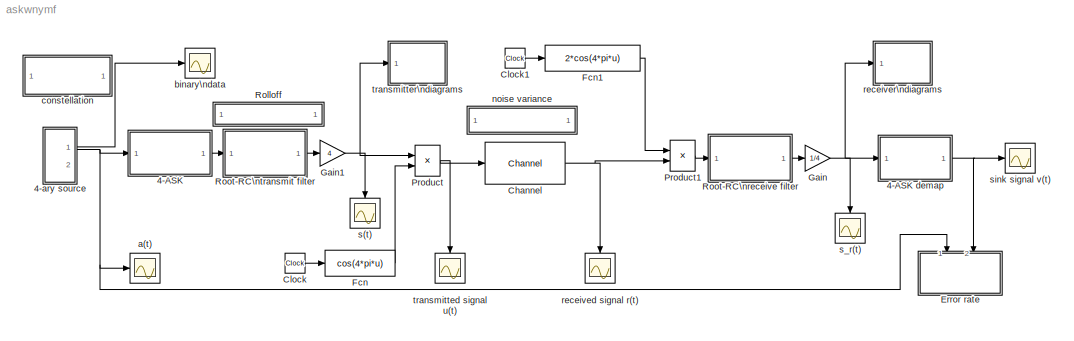
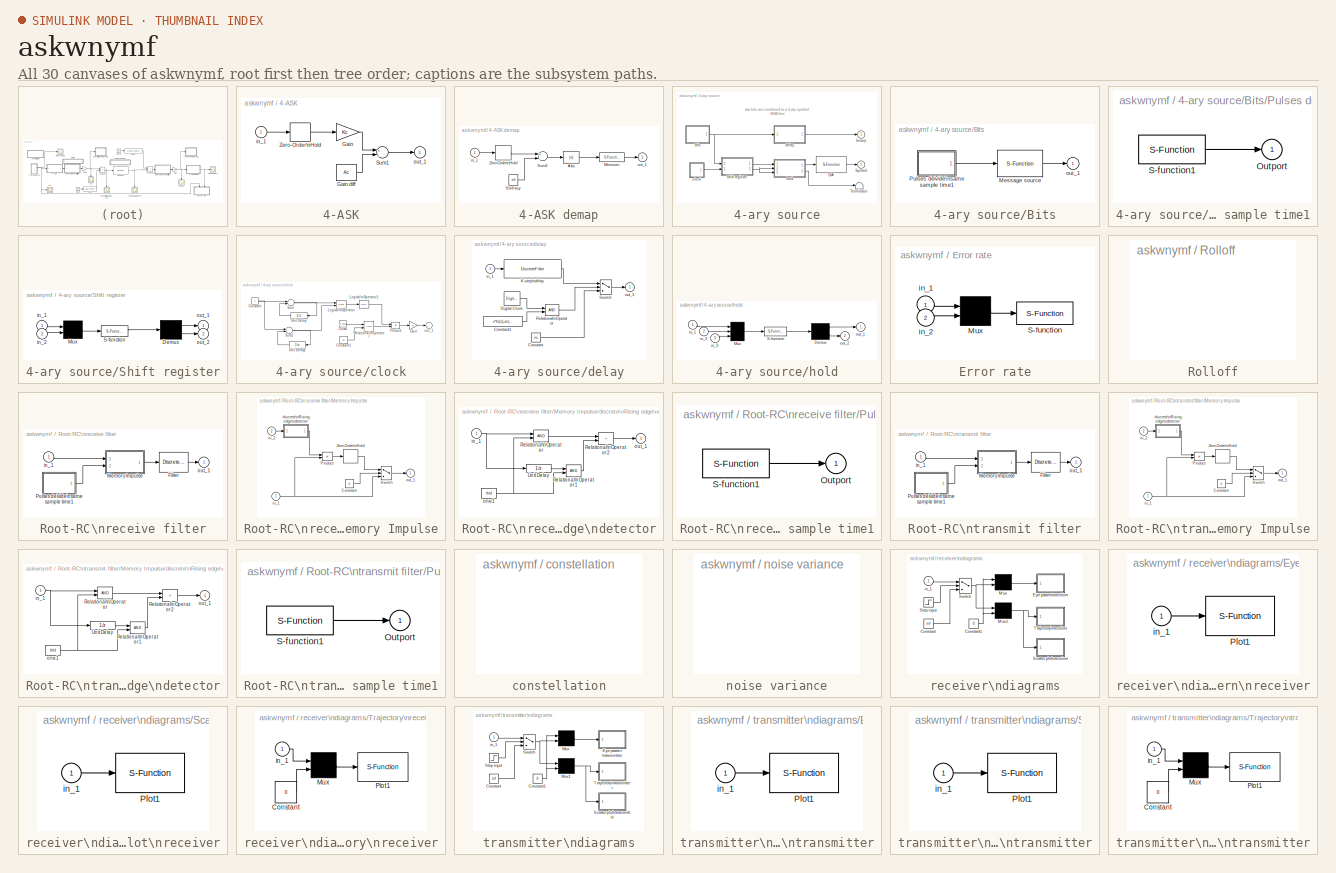
[diagram: thumbnail index - all 30 canvases of the model, root first then tree order]
MODEL askwnymf
KIND model
CONFIG AbsTol = 1e-6
CONFIG FixedStep = auto
CONFIG MaxStep = 0.05
CONFIG MinStep = .00001
CONFIG RelTol = 1e-6
CONFIG Solver = ode45
CONFIG SolverMode = Auto
CONFIG StartTime = 0.0
CONFIG StopTime = 999999
BLOCK [SubSystem] 4-ASK
  MaskCallbackString = |
  MaskDescription = Map a digital symbol onto an analog\nsignal in the range [-1, 1] using M-ary\namplitude shift keying modulation mapping.
  MaskDisplay = disp('MASK\\nmapping')
  MaskEnableString = on,on
  MaskHelp = This block maps an input digit signal onto a signal in the range [-1, 1]. The coded signal can be modulated using analog\\nmodulation blocks. Input digits are in the range [0, M-1], where M is the M-ary number. The input symbol interval can be a two-element vector with the second element being offset. The default value offset is 0. Use the MODMAP function to see the constellation.
  MaskIconFrame = on
  MaskIconOpaque = on
  MaskIconRotate = none
  MaskIconUnits = autoscale
  MaskInitialization = Ac=1;Kc=Ac*2/(N-1);
  MaskPromptString = M-ary number (input integers in range [0, M-1]):|Input symbol interval and offset (sec):
  MaskStyleString = edit,edit
  MaskToolTipString = on,on
  MaskTunableValueString = on,on
  MaskType = M-ASK mapping
  MaskValueString = 4|1
  MaskVarAliasString = ,
  MaskVariables = N=@1;td=@2;
  MaskVisibilityString = on,on
  Ports = [1, 1]
  TreatAsAtomicUnit = off
BLOCK [SubSystem] 4-ASK demap
  MaskCallbackString = |
  MaskDescription = Reverse the MASK mapping process\nConvert [-1 1] analog signal to [0, M-1] symbols.
  MaskDisplay = disp('MASK\\ndemapping')
  MaskEnableString = on,on
  MaskHelp = This block demaps a MASK mapped signal back to digit symbols. You can place this block after a amplitude demodulation block. The input of this block is an analog signal in the range [-1, 1]. The demodulation decides the closest integer fitting in [0,M-1] range. When the input symbol interval is a two-elements vector, the second element is offset. The default offset value is 0.
  MaskIconFrame = on
  MaskIconOpaque = on
  MaskIconRotate = none
  MaskIconUnits = autoscale
  MaskInitialization = Ac=1;sft=[0:N-1]*Ac*2/(N-1)-Ac;
  MaskPromptString = M-ary number (digit integers in ranger [0, M-1]):|Output symbol interval and offset (sec):
  MaskStyleString = edit,edit
  MaskToolTipString = on,on
  MaskTunableValueString = on,on
  MaskType = MASK demapping
  MaskValueString = 4|[1, .9]
  MaskVarAliasString = ,
  MaskVariables = N=@1;td=@2;
  MaskVisibilityString = on,on
  Ports = [1, 1]
  TreatAsAtomicUnit = off
BLOCK [Abs] 4-ASK demap/Abs
BLOCK [S-Function] 4-ASK demap/Minimum
  FunctionName = arymimai
  Parameters = 'min'
  Ports = [1, 1]
BLOCK [Constant] 4-ASK demap/Shift key
  Value = sft
BLOCK [Sum] 4-ASK demap/Sum2
  Inputs = +-
  Ports = [2, 1]
BLOCK [ZeroOrderHold] 4-ASK demap/Zero-Order\nHold
  SampleTime = td
BLOCK [Inport] 4-ASK demap/in_1
BLOCK [Outport] 4-ASK demap/out_1
BLOCK [Gain] 4-ASK/Gain
  Gain = Kc
BLOCK [Constant] 4-ASK/Gain diff
  Value = Ac
BLOCK [Sum] 4-ASK/Sum1
  Inputs = +-
  Ports = [2, 1]
BLOCK [ZeroOrderHold] 4-ASK/Zero-Order\nHold
  SampleTime = td
BLOCK [Inport] 4-ASK/in_1
BLOCK [Outport] 4-ASK/out_1
BLOCK [SubSystem] 4-ary source
  Ports = [0, 2]
  ShowPortLabels = off
  TreatAsAtomicUnit = off
BLOCK [SubSystem] 4-ary source/Bits
  MaskCallbackString = |||
  MaskDescription = Read from a workspace variable at\nsampling time point.
  MaskDisplay = plot(0,0,100,100,x,y);disp('Rd wksp')
  MaskEnableString = on,on,on,on
  MaskHelp = This block reads from a workspace variable at a given sample time. The column number is the block output vector length. When the simulation reaches the end of the variable (eof), the block will cyclically output from the first row of the variable or output zeros based on the repeat flag entree.
  MaskIconFrame = on
  MaskIconOpaque = on
  MaskIconRotate = none
  MaskIconUnits = autoscale
  MaskInitialization = var=@1;td=@2;ts=td(1);if (length(td)>=2),off=td(2);else off=0;end;cyc=@3;ini=@4;[x,y]=srcsicon(7);
  MaskPromptString = Variable (column_number=block_output_length):|Data output sample time (sec):|Repeat flag (1: repeat read, 0: output zeros after eof).|Initial output:
  MaskStyleString = edit,edit,edit,edit
  MaskToolTipString = on,on,on,on
  MaskTunableValueString = on,on,on,on
  MaskType = Read from workspace
  MaskValueString = randint(2000,1,2)|.5|1|1
  MaskVarAliasString = ,,,
  MaskVisibilityString = on,on,on,on
  Ports = [0, 1]
  ShowPortLabels = off
  TreatAsAtomicUnit = off
BLOCK [S-Function] 4-ary source/Bits/Message source
  FunctionName = trigwksp
  MaskCallbackString = |||
  MaskDescription = The raising edge of input pulse trigger the block output the next row from the workspace variable.
  MaskDisplay = disp('Triggered\\nread')
  MaskEnableString = on,on,on,on
  MaskHelp = This block reads the data from a workspace variable. The output is refreshed at the raising edge of the input pulse.
  MaskIconFrame = on
  MaskIconOpaque = on
  MaskIconRotate = none
  MaskIconUnits = autoscale
  MaskInitialization = var=@1;thd=@2;cyclFlag=@3;ini=@4;
  MaskPromptString = Read the variable:|Threshold for the input pulse:|Cyclic read variable (1) or amend zeros (0).|Output before first trigger:
  MaskStyleString = edit,edit,edit,edit
  MaskToolTipString = on,on,on,on
  MaskTunableValueString = on,on,on,on
  MaskType = Read from workspace
  MaskValueString = var|.1|cyc|ini
  MaskVarAliasString = ,,,
  MaskVisibilityString = on,on,on,on
  Parameters = var,thd,cyclFlag,ini
  Ports = [1, 1]
BLOCK [SubSystem] 4-ary source/Bits/Pulses deivide\nsame sample time1
  MaskCallbackString = ||
  MaskDescription = Vector pulses with sample rate of each pulse as Sample_time ./Divider.
  MaskDisplay = disp('Vector\\nPulse')
  MaskEnableString = on,on,on
  MaskHelp = This block generator a vector pulses. The output length is the same as the vector defined in \"Divider\". The ith element of the output has the sample time Sample_time/Divider(i). All elements in \"Divider\" must be integers.  <repeated x3 — deduplicated; at blocks: Pulses deivide\nsame sample time1>
  MaskIconFrame = on
  MaskIconOpaque = on
  MaskIconRotate = none
  MaskIconUnits = autoscale
  MaskInitialization = samp_time=@1;out_divid=@2;offset=@3;
  MaskPromptString = Sample time (scalar, sec):|Divider (integer vector):|Offset (have same dimension as Divider:
  MaskStyleString = edit,edit,edit
  MaskToolTipString = on,on,on
  MaskTunableValueString = on,on,on
  MaskType = Pulse generator
  MaskValueString = ts|1|off
  MaskVarAliasString = ,,
  MaskVisibilityString = on,on,on
  Ports = [0, 1]
  ShowPortLabels = off
  TreatAsAtomicUnit = off
BLOCK [Outport] 4-ary source/Bits/Pulses deivide\nsame sample time1/Outport
BLOCK [S-Function] 4-ary source/Bits/Pulses deivide\nsame sample time1/S-function1
  FunctionName = homopuls
  Parameters = samp_time, out_divid, offset
  Ports = [0, 1]
BLOCK [Outport] 4-ary source/Bits/out_1
BLOCK [S-Function] 4-ary source/D//A 
  FunctionName = simbi2de
  MaskDescription = Convert base M integer with each\nposition in the input vector into scalar decimal output.
  MaskDisplay = disp('Vec to sca\\nconverter')
  MaskEnableString = on
  MaskHelp = This block convert the base M vector into scalar decimal integer output. Each element of the input vector is one position of the digit of the base M integer. The 1st element in the input vector contains the 1's position. The 2nd element in the input vector contains the M's position.
  MaskIconFrame = on
  MaskIconOpaque = on
  MaskIconRotate = none
  MaskIconUnits = autoscale
  MaskInitialization = p=@1;
  MaskPromptString = Input integer base M:
  MaskStyleString = edit
  MaskToolTipString = on
  MaskTunableValueString = on
  MaskType = Base M vector to decimal integer
  MaskValueString = 2
  MaskVisibilityString = on
  Parameters = p
  Ports = [1, 1]
BLOCK [SubSystem] 4-ary source/Shift register
  MaskCallbackString = |
  MaskDescription = The rising edge of the 2nd port pulse\ntriggers the block to input the 1st port data and to shift the register.
  MaskDisplay = plot(0,0,100,100,x,y,v,w);disp('Reg. shift')
  MaskEnableString = on,on
  MaskHelp = This block stores the scalar input signal from the 1st input port at the rising edge of the pulse from the 2nd port. The 1st outport outputs a vector with its size the same as the \"Delay steps\" entree of this block. The maximum delay is the register size of this block. The second outport outputs a positive pulse when the register is\\nrefreshed.
  MaskIconFrame = on
  MaskIconOpaque = on
  MaskIconRotate = none
  MaskIconUnits = autoscale
  MaskInitialization = shft_out=@1;thrhld=@2;len_rg=length(@1);[v,w]=trigicon(0,25,get_param(gcb,'orientation'),2);[x,y]=trigicon(1,75,get_param(gcb,'orientation'),2);
  MaskPromptString = Delay steps (output length is same as this vector size):|Threshold in detecting the rising edge of the pulse:
  MaskStyleString = edit,edit
  MaskToolTipString = on,on
  MaskTunableValueString = on,on
  MaskType = Register-shift
  MaskValueString = [2 1]|1
  MaskVarAliasString = ,
  MaskVisibilityString = on,on
  Ports = [2, 2]
  ShowPortLabels = off
  TreatAsAtomicUnit = off
BLOCK [Demux] 4-ary source/Shift register/Demux
  Outputs = [len_rg, 1]
  Ports = [1, 2]
BLOCK [Mux] 4-ary source/Shift register/Mux
  Inputs = 2
  Ports = [2, 1]
BLOCK [S-Function] 4-ary source/Shift register/S-function
  FunctionName = regshift
  Parameters = shft_out, thrhld
  Ports = [1, 1]
BLOCK [Inport] 4-ary source/Shift register/in_1
BLOCK [Inport] 4-ary source/Shift register/in_2
  Port = 2
BLOCK [Outport] 4-ary source/Shift register/out_1
BLOCK [Outport] 4-ary source/Shift register/out_2
  Port = 2
BLOCK [Outport] 4-ary source/Symbol
  Port = 2
BLOCK [Terminator] 4-ary source/Terminator
BLOCK [Outport] 4-ary source/binary
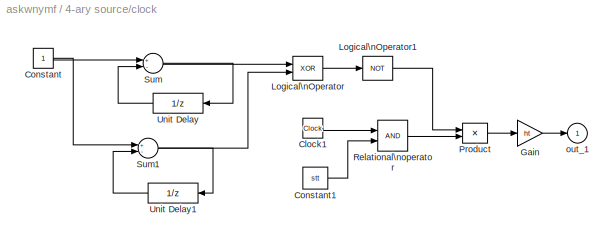
BLOCK [SubSystem] 4-ary source/clock
  MaskCallbackString = |||
  MaskDescription = Pulse Generator.
  MaskDisplay = plot(0,0,100,100,[90,75,75,60,60,35,35,20,20,10],[20,20,80,80,20,20,80,80,20,20])
  MaskEnableString = on,on,on,on
  MaskHelp = Pulse generator which ensures pulse\\ntransitions are hit. Provides a vector of pulses when the height is entered as a vector.\\nUnmask to see how it works.
  MaskIconFrame = on
  MaskIconOpaque = on
  MaskIconRotate = none
  MaskIconUnits = autoscale
  MaskInitialization = Ts=@1; du=@2; ht=@3; stt=@4; ini=ones(length(ht),1); st1=rem(stt,Ts); st2=rem(stt+du,Ts);if(Ts<=1.2*du),ini=zeros(length(ht),1);end;
  MaskPromptString = Pulse period (secs):|Pulse width:|Pulse height:|Pulse start time:
  MaskStyleString = edit,edit,edit,edit
  MaskToolTipString = on,on,on,on
  MaskTunableValueString = on,on,on,on
  MaskType = Pulse Generator
  MaskValueString = .5|.25|1|0
  MaskVarAliasString = ,,,
  MaskVisibilityString = on,on,on,on
  Ports = [0, 1]
  ShowPortLabels = off
  TreatAsAtomicUnit = off
BLOCK [Clock] 4-ary source/clock/Clock1
  Decimation = 10
BLOCK [Constant] 4-ary source/clock/Constant
BLOCK [Constant] 4-ary source/clock/Constant1
  Value = stt
BLOCK [Gain] 4-ary source/clock/Gain
  Gain = ht
BLOCK [Logic] 4-ary source/clock/Logical\nOperator
  Operator = XOR
  Ports = [2, 1]
BLOCK [Logic] 4-ary source/clock/Logical\nOperator1
  Inputs = 1
  Operator = NOT
  Ports = [1, 1]
BLOCK [Product] 4-ary source/clock/Product
  Ports = [2, 1]
BLOCK [RelationalOperator] 4-ary source/clock/Relational\noperator
BLOCK [Sum] 4-ary source/clock/Sum
  Inputs = +-
  Ports = [2, 1]
BLOCK [Sum] 4-ary source/clock/Sum1
  Inputs = +-
  Ports = [2, 1]
BLOCK [UnitDelay] 4-ary source/clock/Unit Delay
  SampleTime = [Ts,st1]
BLOCK [UnitDelay] 4-ary source/clock/Unit Delay1
  SampleTime = [Ts,st2]
  X0 = ini
BLOCK [Outport] 4-ary source/clock/out_1
BLOCK [SubSystem] 4-ary source/delay
  MaskCallbackString = ||
  MaskDescription = Output is K-step delay of the input signal.
  MaskDisplay = disp('-k\\nz   ')
  MaskEnableString = on,on,on
  MaskHelp = This block holds the input signal for K steps and then outputs the signal. The delay step cannot be changed during the simulation.
  MaskIconFrame = on
  MaskIconOpaque = on
  MaskIconRotate = none
  MaskIconUnits = autoscale
  MaskInitialization = n=@1;ts=@2;if length(ts)<2, ts=[ts 0];end;ini=@3;
  MaskPromptString = Delay steps (integer):|Sample time (sec):|Initial output:
  MaskStyleString = edit,edit,edit
  MaskToolTipString = on,on,on
  MaskTunableValueString = on,on,on
  MaskType = Multi-step delay
  MaskValueString = 2|.5|0
  MaskVarAliasString = ,,
  MaskVisibilityString = on,on,on
  Ports = [1, 1]
  ShowPortLabels = off
  TreatAsAtomicUnit = off
BLOCK [Constant] 4-ary source/delay/Constant
  Value = ini
BLOCK [Constant] 4-ary source/delay/Constant1
  Value = n*ts(1)+ts(2)
BLOCK [DigitalClock] 4-ary source/delay/Digital Clock
  SampleTime = ts
BLOCK [DiscreteFilter] 4-ary source/delay/K-step\ndelay
  Denominator = 1
  Numerator = [zeros(1,n), 1]
  SampleTime = ts
BLOCK [RelationalOperator] 4-ary source/delay/Relational\nOperator
BLOCK [Switch] 4-ary source/delay/Switch
  Threshold = .1
BLOCK [Inport] 4-ary source/delay/in_1
BLOCK [Outport] 4-ary source/delay/out_1
BLOCK [SubSystem] 4-ary source/hold
  MaskCallbackString = ||||
  MaskDescription = Rising edge of the 2nd port triggers 1st port vector signal in. Rising edge of the 3rd port triggers 1st outport signal out.
  MaskDisplay = plot(0,0,100,100,x,y,v,w,u,z);disp('Buffer dwn')
  MaskEnableString = on,on,on,on,on
  MaskHelp = The block refreshes its registers with the vector input from the 1st inport at the rising edge of the 2nd inport pulse. The 1st outport outputs the elements of the registers starting with the given initial index. The rising edge of the 3rd inport pulse triggers the 1st output to output the register value with the index increasing the increment value. The second outport outputs a spike pulse when t...<+34ch>
  MaskIconFrame = on
  MaskIconOpaque = on
  MaskIconRotate = none
  MaskIconUnits = autoscale
  MaskInitialization = in_size=@1;ini_idx=@2;idx_inc=@3;thrshld=@4;cycl_flag=@5;out_size=length(ini_idx);[v,w]=trigicon(0,25,get_param(gcb,'orientation'),2);[x,y]=trigicon(1,75,get_param(gcb,'orientation'),2);[u,z]=trigicon(0,50,get_param(gcb,'orientation'),2);
  MaskPromptString = Input signal vector size:|Initial index (integer vector):|Increment for each index (integer vector):|Trigger threshold:|When index exceed register size, 1: cyclic out, 0: zero out:
  MaskStyleString = edit,edit,edit,edit,edit
  MaskToolTipString = on,on,on,on,on
  MaskTunableValueString = on,on,on,on,on
  MaskType = Triggered buffer down
  MaskValueString = 2|[1 0]|[0 0]|1|0
  MaskVarAliasString = ,,,,
  MaskVisibilityString = on,on,on,on,on
  Ports = [3, 2]
  ShowPortLabels = off
  TreatAsAtomicUnit = off
BLOCK [Demux] 4-ary source/hold/Demux
  Outputs = [out_size 1]
  Ports = [1, 2]
BLOCK [Mux] 4-ary source/hold/Mux
  Inputs = [in_size 1 1]
  Ports = [3, 1]
BLOCK [S-Function] 4-ary source/hold/S-function
  FunctionName = regdown
  Parameters = ini_idx, idx_inc, thrshld, cycl_flag
  Ports = [1, 1]
BLOCK [Inport] 4-ary source/hold/in_1
BLOCK [Inport] 4-ary source/hold/in_2
  Port = 2
BLOCK [Inport] 4-ary source/hold/in_3
  Port = 3
BLOCK [Outport] 4-ary source/hold/out_1
BLOCK [Outport] 4-ary source/hold/out_2
  Port = 2
BLOCK [Reference] Channel  REF=librnew/Channel  (lib defined in mdl_aba7bc8d2a37)
  Ports = [1, 1]
  SourceBlock = librnew/Channel
  SourceType = AWGN channel, fixed parameter
  m = 0
  s = 12345
  variance = 0.001
BLOCK [Clock] Clock
  Decimation = 10
BLOCK [Clock] Clock1
  Decimation = 10
BLOCK [SubSystem] Error rate
  CopyFcn = sbiterr([],[],[],'CopyBlock')
  DeleteFcn = sbiterr([],[],[],'DeleteBlock')
  LoadFcn = sbiterr([],[],[],'LoadBlock')
  MaskCallbackString = |||
  MaskDescription = Use the input data from the 1st port as the reference signal to detect the number of errors and error rate of the 2nd signal.
  MaskDisplay = disp('Error\\nmeter')
  MaskEnableString = on,on,on,on
  MaskHelp = The signal from the first port must be a scalar. The second input port can be a vector with a delay to the first port signal. The comparison happens only at the sampling point.
  MaskIconFrame = on
  MaskIconOpaque = on
  MaskIconRotate = none
  MaskIconUnits = autoscale
  MaskInitialization = K=@1;num_lin=@2;TDelay=@3;Sample=@4;
  MaskPromptString = Bit per symbol:|Number of digits on display:|Delay between 1st port and 2nd port:|Sample time (sec):
  MaskStyleString = edit,edit,edit,edit
  MaskToolTipString = on,on,on,on
  MaskTunableValueString = on,on,on,on
  MaskType = Symbol/bit error counter
  MaskValueString = 2|10|12|1
  MaskVarAliasString = ,,,
  MaskVisibilityString = on,on,on,on
  NameChangeFcn = sbiterr([],[],[],'NameChange')
  Ports = [2]
  ShowPortLabels = off
  StartFcn = sbiterr([],[],[],'Start')
  StopFcn = sbiterr([],[],[],'Stop')
  TreatAsAtomicUnit = off
BLOCK [Mux] Error rate/Mux
  Inputs = 2
  Ports = [2, 1]
BLOCK [S-Function] Error rate/S-function
  FunctionName = sbiterr
  Parameters = num_lin, K, TDelay, Sample
  Ports = [1]
BLOCK [Inport] Error rate/in_1
BLOCK [Inport] Error rate/in_2
  Port = 2
BLOCK [Fcn] Fcn
  Expr = cos(4*pi*u)
BLOCK [Fcn] Fcn1
  Expr = 2*cos(4*pi*u)
BLOCK [Gain] Gain
  Gain = 1/4
BLOCK [Gain] Gain1
  Gain = 4
BLOCK [Product] Product
  Ports = [2, 1]
BLOCK [Product] Product1
  Ports = [2, 1]
BLOCK [SubSystem] Rolloff
  MaskDisplay = disp('Rolloff-Factor')
  MaskIconFrame = on
  MaskIconOpaque = on
  MaskIconRotate = none
  MaskIconUnits = autoscale
  MaskType = rolloff
  OpenFcn = setrobin
  Ports = []
  ShowPortLabels = off
  TreatAsAtomicUnit = off
BLOCK [SubSystem] Root-RC\nreceive filter
  MaskCallbackString = |||||
  MaskDescription = Design a raised cosine filter and use it to filter the input signal.
  MaskDisplay = disp('R-C\\nfilter')
  MaskEnableString = on,on,on,on,on,on
  MaskHelp = This block designs a raised cosine filter using the specified parameter. The filter is used to filter the input signal. You can optionally use the sinc filter in the filtering computation.
  MaskIconFrame = on
  MaskIconOpaque = on
  MaskIconRotate = none
  MaskIconUnits = autoscale
  MaskInitialization = td=@1;if length(td)>1,off=td(2);td=td(1);else,off=0;end;ts=@2;R=@3;delay=@4;fil=@5;[num,den]=rcosine(1/td(1),1/ts(1),fil,R,delay);x=@6/2;
  MaskPromptString = Symbol interval (sec):|Computation sampling time (sec):|Filter rolloff factor:|Delay step (integer to multiply symbol interval):|Filter type (FIR or IIR) / (Normal or Sqrt):|With or without sinc filter (1 or 0, suggest 1):
  MaskStyleString = edit,edit,edit,edit,edit,edit
  MaskToolTipString = on,on,on,on,on,on
  MaskTunableValueString = on,on,on,on,on,on
  MaskType = R-C filter
  MaskValueString = 1|.05|.5|6|'FIR/Sqrt'|0
  MaskVarAliasString = ,,,,,
  MaskVisibilityString = on,on,on,on,on,on
  Ports = [1, 1]
  ShowPortLabels = off
  TreatAsAtomicUnit = off
BLOCK [DiscreteFilter] Root-RC\nreceive filter/Filter
  Denominator = den
  Numerator = num
  SampleTime = ts
BLOCK [SubSystem] Root-RC\nreceive filter/Memory Impulse
  MaskCallbackString = |
  MaskDescription = 1/sinc filter:
  MaskDisplay = disp('1/sinc')
  MaskEnableString = on,on
  MaskHelp = When the threshold is greater than zero, this block outputs an impulse signal, which begins at the raising edge of the second input and lasts the holding time. The impulse holds a constant amplitude, which equals the amplitude of the first input at the begining of the impulse. A clock raising edge will trigger next impulse. When the threshold is less or equal to zero, this block faithfully outputs...<+17ch>
  MaskIconFrame = on
  MaskIconOpaque = on
  MaskIconRotate = none
  MaskIconUnits = autoscale
  MaskInitialization = ts=@1;thr=@2;x=thr>0;
  MaskPromptString = Holding time:|Threshold for clock pulse:
  MaskStyleString = edit,edit
  MaskToolTipString = on,on
  MaskTunableValueString = on,on
  MaskType = Impulse
  MaskValueString = ts|x
  MaskVarAliasString = ,
  MaskVisibilityString = on,on
  Ports = [2, 1]
  ShowPortLabels = off
  TreatAsAtomicUnit = off
BLOCK [Constant] Root-RC\nreceive filter/Memory Impulse/Constant
  Value = x
BLOCK [Product] Root-RC\nreceive filter/Memory Impulse/Product
  Ports = [2, 1]
BLOCK [Switch] Root-RC\nreceive filter/Memory Impulse/Switch
  Threshold = .5
BLOCK [ZeroOrderHold] Root-RC\nreceive filter/Memory Impulse/Zero-Order\nHold
  SampleTime = ts
BLOCK [SubSystem] Root-RC\nreceive filter/Memory Impulse/discrete\nRising edge\ndetector
  MaskCallbackString = |
  MaskDescription = Rising edge detection:
  MaskDisplay = disp('Edge\\nDetector')
  MaskEnableString = on,on
  MaskHelp = When the input signal rising edge passed the given shreshold, this block outputs one, otherwise outputs zero.
  MaskIconFrame = on
  MaskIconOpaque = on
  MaskIconRotate = none
  MaskIconUnits = autoscale
  MaskInitialization = thld=@1;ts=@2;
  MaskPromptString = Threshold:|Sampling time:
  MaskStyleString = edit,edit
  MaskToolTipString = on,on
  MaskTunableValueString = on,on
  MaskType = Edge Detection
  MaskValueString = thr|ts
  MaskVarAliasString = ,
  MaskVisibilityString = on,on
  Ports = [1, 1]
  ShowPortLabels = off
  TreatAsAtomicUnit = off
BLOCK [RelationalOperator] Root-RC\nreceive filter/Memory Impulse/discrete\nRising edge\ndetector/Relational\nOperator
BLOCK [RelationalOperator] Root-RC\nreceive filter/Memory Impulse/discrete\nRising edge\ndetector/Relational\nOperator1
BLOCK [RelationalOperator] Root-RC\nreceive filter/Memory Impulse/discrete\nRising edge\ndetector/Relational\nOperator2
  Operator = >
BLOCK [UnitDelay] Root-RC\nreceive filter/Memory Impulse/discrete\nRising edge\ndetector/Unit Delay
  SampleTime = ts
BLOCK [Inport] Root-RC\nreceive filter/Memory Impulse/discrete\nRising edge\ndetector/in_1
BLOCK [Constant] Root-RC\nreceive filter/Memory Impulse/discrete\nRising edge\ndetector/one1
  Value = thld
BLOCK [Outport] Root-RC\nreceive filter/Memory Impulse/discrete\nRising edge\ndetector/out_1
BLOCK [Inport] Root-RC\nreceive filter/Memory Impulse/in_1
BLOCK [Inport] Root-RC\nreceive filter/Memory Impulse/in_2
  Port = 2
BLOCK [Outport] Root-RC\nreceive filter/Memory Impulse/out_1
BLOCK [SubSystem] Root-RC\nreceive filter/Pulses deivide\nsame sample time1
  MaskCallbackString = ||
  MaskDescription = Vector pulses with sample rate of each pulse as Sample_time ./Divider.
  MaskDisplay = disp('Vector\\nPulse')
  MaskEnableString = on,on,on
  MaskIconFrame = on
  MaskIconOpaque = on
  MaskIconRotate = none
  MaskIconUnits = autoscale
  MaskInitialization = samp_time=@1;out_divid=@2;offset=@3;
  MaskPromptString = Sample time (scalar, sec):|Divider (integer vector):|Offset (have same dimension as Divider:
  MaskStyleString = edit,edit,edit
  MaskToolTipString = on,on,on
  MaskTunableValueString = on,on,on
  MaskType = Pulse generator
  MaskValueString = td|1|off
  MaskVarAliasString = ,,
  MaskVisibilityString = on,on,on
  Ports = [0, 1]
  ShowPortLabels = off
  TreatAsAtomicUnit = off
BLOCK [Outport] Root-RC\nreceive filter/Pulses deivide\nsame sample time1/Outport
BLOCK [S-Function] Root-RC\nreceive filter/Pulses deivide\nsame sample time1/S-function1
  FunctionName = homopuls
  Parameters = samp_time, out_divid, offset
  Ports = [0, 1]
BLOCK [Inport] Root-RC\nreceive filter/in_1
BLOCK [Outport] Root-RC\nreceive filter/out_1
BLOCK [SubSystem] Root-RC\ntransmit filter
  MaskCallbackString = |||||
  MaskDescription = Design a raised cosine filter and use it to filter the input signal.
  MaskDisplay = disp('R-C\\nfilter')
  MaskEnableString = on,on,on,on,on,on
  MaskHelp = This block designs a raised cosine filter using the specified parameter. The filter is used to filter the input signal. You can optionally use the sinc filter in the filtering computation.
  MaskIconFrame = on
  MaskIconOpaque = on
  MaskIconRotate = none
  MaskIconUnits = autoscale
  MaskInitialization = td=@1;if length(td)>1,off=td(2);td=td(1);else,off=0;end;ts=@2;R=@3;delay=@4;fil=@5;[num,den]=rcosine(1/td(1),1/ts(1),fil,R,delay);x=@6/2;
  MaskPromptString = Symbol interval (sec):|Computation sampling time (sec):|Filter rolloff factor:|Delay step (integer to multiply symbol interval):|Filter type (FIR or IIR) / (Normal or Sqrt):|With or without sinc filter (1 or 0, suggest 1):
  MaskStyleString = edit,edit,edit,edit,edit,edit
  MaskToolTipString = on,on,on,on,on,on
  MaskTunableValueString = on,on,on,on,on,on
  MaskType = R-C filter
  MaskValueString = 1|.05|.5|6|'FIR/Sqrt'|1
  MaskVarAliasString = ,,,,,
  MaskVisibilityString = on,on,on,on,on,on
  Ports = [1, 1]
  ShowPortLabels = off
  TreatAsAtomicUnit = off
BLOCK [DiscreteFilter] Root-RC\ntransmit filter/Filter
  Denominator = den
  Numerator = num
  SampleTime = ts
BLOCK [SubSystem] Root-RC\ntransmit filter/Memory Impulse
  MaskCallbackString = |
  MaskDescription = 1/sinc filter:
  MaskDisplay = disp('1/sinc')
  MaskEnableString = on,on
  MaskHelp = When the threshold is greater than zero, this block outputs an impulse signal, which begins at the raising edge of the second input and lasts the holding time. The impulse holds a constant amplitude, which equals the amplitude of the first input at the begining of the impulse. A clock raising edge will trigger next impulse. When the threshold is less or equal to zero, this block faithfully outputs...<+17ch>
  MaskIconFrame = on
  MaskIconOpaque = on
  MaskIconRotate = none
  MaskIconUnits = autoscale
  MaskInitialization = ts=@1;thr=@2;x=thr>0;
  MaskPromptString = Holding time:|Threshold for clock pulse:
  MaskStyleString = edit,edit
  MaskToolTipString = on,on
  MaskTunableValueString = on,on
  MaskType = Impulse
  MaskValueString = ts|x
  MaskVarAliasString = ,
  MaskVisibilityString = on,on
  Ports = [2, 1]
  ShowPortLabels = off
  TreatAsAtomicUnit = off
BLOCK [Constant] Root-RC\ntransmit filter/Memory Impulse/Constant
  Value = x
BLOCK [Product] Root-RC\ntransmit filter/Memory Impulse/Product
  Ports = [2, 1]
BLOCK [Switch] Root-RC\ntransmit filter/Memory Impulse/Switch
  Threshold = .5
BLOCK [ZeroOrderHold] Root-RC\ntransmit filter/Memory Impulse/Zero-Order\nHold
  SampleTime = ts
BLOCK [SubSystem] Root-RC\ntransmit filter/Memory Impulse/discrete\nRising edge\ndetector
  MaskCallbackString = |
  MaskDescription = Rising edge detection:
  MaskDisplay = disp('Edge\\nDetector')
  MaskEnableString = on,on
  MaskHelp = When the input signal rising edge passed the given shreshold, this block outputs one, otherwise outputs zero.
  MaskIconFrame = on
  MaskIconOpaque = on
  MaskIconRotate = none
  MaskIconUnits = autoscale
  MaskInitialization = thld=@1;ts=@2;
  MaskPromptString = Threshold:|Sampling time:
  MaskStyleString = edit,edit
  MaskToolTipString = on,on
  MaskTunableValueString = on,on
  MaskType = Edge Detection
  MaskValueString = thr|ts
  MaskVarAliasString = ,
  MaskVisibilityString = on,on
  Ports = [1, 1]
  ShowPortLabels = off
  TreatAsAtomicUnit = off
BLOCK [RelationalOperator] Root-RC\ntransmit filter/Memory Impulse/discrete\nRising edge\ndetector/Relational\nOperator
BLOCK [RelationalOperator] Root-RC\ntransmit filter/Memory Impulse/discrete\nRising edge\ndetector/Relational\nOperator1
BLOCK [RelationalOperator] Root-RC\ntransmit filter/Memory Impulse/discrete\nRising edge\ndetector/Relational\nOperator2
  Operator = >
BLOCK [UnitDelay] Root-RC\ntransmit filter/Memory Impulse/discrete\nRising edge\ndetector/Unit Delay
  SampleTime = ts
BLOCK [Inport] Root-RC\ntransmit filter/Memory Impulse/discrete\nRising edge\ndetector/in_1
BLOCK [Constant] Root-RC\ntransmit filter/Memory Impulse/discrete\nRising edge\ndetector/one1
  Value = thld
BLOCK [Outport] Root-RC\ntransmit filter/Memory Impulse/discrete\nRising edge\ndetector/out_1
BLOCK [Inport] Root-RC\ntransmit filter/Memory Impulse/in_1
BLOCK [Inport] Root-RC\ntransmit filter/Memory Impulse/in_2
  Port = 2
BLOCK [Outport] Root-RC\ntransmit filter/Memory Impulse/out_1
BLOCK [SubSystem] Root-RC\ntransmit filter/Pulses deivide\nsame sample time1
  MaskCallbackString = ||
  MaskDescription = Vector pulses with sample rate of each pulse as Sample_time ./Divider.
  MaskDisplay = disp('Vector\\nPulse')
  MaskEnableString = on,on,on
  MaskIconFrame = on
  MaskIconOpaque = on
  MaskIconRotate = none
  MaskIconUnits = autoscale
  MaskInitialization = samp_time=@1;out_divid=@2;offset=@3;
  MaskPromptString = Sample time (scalar, sec):|Divider (integer vector):|Offset (have same dimension as Divider:
  MaskStyleString = edit,edit,edit
  MaskToolTipString = on,on,on
  MaskTunableValueString = on,on,on
  MaskType = Pulse generator
  MaskValueString = td|1|off
  MaskVarAliasString = ,,
  MaskVisibilityString = on,on,on
  Ports = [0, 1]
  ShowPortLabels = off
  TreatAsAtomicUnit = off
BLOCK [Outport] Root-RC\ntransmit filter/Pulses deivide\nsame sample time1/Outport
BLOCK [S-Function] Root-RC\ntransmit filter/Pulses deivide\nsame sample time1/S-function1
  FunctionName = homopuls
  Parameters = samp_time, out_divid, offset
  Ports = [0, 1]
BLOCK [Inport] Root-RC\ntransmit filter/in_1
BLOCK [Outport] Root-RC\ntransmit filter/out_1
BLOCK [Scope] a(t)
  DataFormat = Array
  NumInputPorts = 1
  Ports = [1]
  TimeRange = 25.000000
  YMax = 3
  YMin = -3
BLOCK [Scope] binary\ndata
  DataFormat = Array
  NumInputPorts = 1
  Ports = [1]
  TimeRange = 25.000000
  YMax = 3
  YMin = -3
BLOCK [SubSystem] constellation
  MaskDisplay = disp('Signal Space \\n Constellation')
  MaskIconFrame = on
  MaskIconOpaque = on
  MaskIconRotate = none
  MaskIconUnits = autoscale
  MaskType = constellation
  OpenFcn = cplotask(4)
  Ports = []
  ShowPortLabels = off
  TreatAsAtomicUnit = off
BLOCK [SubSystem] noise variance
  MaskDisplay = disp('Noise variance')
  MaskIconFrame = on
  MaskIconOpaque = on
  MaskIconRotate = none
  MaskIconUnits = autoscale
  MaskType = noise
  OpenFcn = setnoise
  Ports = []
  ShowPortLabels = off
  TreatAsAtomicUnit = off
BLOCK [Scope] received signal r(t)
  DataFormat = Array
  NumInputPorts = 1
  Ports = [1]
  TimeRange = 25.000000
  YMax = 1.5
  YMin = -1.5
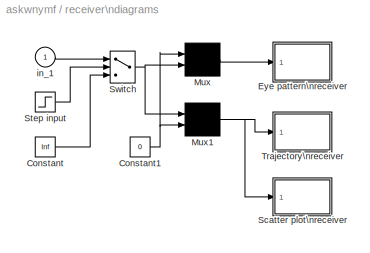
BLOCK [SubSystem] receiver\ndiagrams
  MaskCallbackString = ||
  MaskDescription = Eye pattern, signal space trajectory and scatter plot.
  MaskDisplay = plot(0,0,100,100,x,y)
  MaskEnableString = on,on,on
  MaskIconFrame = on
  MaskIconOpaque = on
  MaskIconRotate = none
  MaskIconUnits = autoscale
  MaskInitialization = [x, y] = srcsicon(10);
  MaskPromptString = Plot start time:|Samples per time slot (2*T):|Decision offset:
  MaskStyleString = edit,edit,edit
  MaskToolTipString = on,on,on
  MaskTunableValueString = on,on,on
  MaskType = Diagrams
  MaskValueString = 12|40|0
  MaskVarAliasString = ,,
  MaskVariables = starttime=@1;anzahl=@2;offset=@3;
  MaskVisibilityString = on,on,on
  Ports = [1]
  ShowPortLabels = off
  TreatAsAtomicUnit = off
BLOCK [Constant] receiver\ndiagrams/Constant
  Value = Inf
BLOCK [Constant] receiver\ndiagrams/Constant1
  Value = 0
BLOCK [SubSystem] receiver\ndiagrams/Eye pattern\nreceiver
  CopyFcn = eyesampl([],[],[],'CopyBlock')
  DeleteFcn = eyesampl([],[],[],'DeleteBlock')
  LoadFcn = eyesampl([],[],[],'LoadBlock')
  MaskCallbackString = |||||
  MaskDescription = Produce eye-pattern diagram and/or scatter plot.
  MaskDisplay = plot(0,0,100,100,x,y);
  MaskEnableString = on,on,on,on,on,on
  MaskHelp = This plot opens one, or two plots by assigning the line type parameters. The scatter plot point is selected by the decision point in the first parameter entry. A decision line is drawn in the eye-pattern diagram. The plot is updated at the plot update sample time point.  <repeated x4 — deduplicated; at blocks: Eye pattern\nreceiver, Scatter plot\nreceiver, Eye pattern \ntransmitter, Scatter plot\ntransmitter>
  MaskIconFrame = on
  MaskIconOpaque = on
  MaskIconRotate = none
  MaskIconUnits = autoscale
  MaskInitialization = time_range=@1;boundary=@2;kept_length=@3;eye_line=@4;scatter_line=@5;two_d_line=@6;[x,y]=srcsicon(10);
  MaskPromptString = [Symbol interval, plot offset, decision point offset]:|Lower and upper bound of in-coming signal (1x2 vector):|Number of saved traces:|Line-type for eye-pattern diagram (0 for no plot):|Line-type for scatter plot (0 for no plot):|Plot update sample time:  <repeated x4 — deduplicated; at blocks: Eye pattern\nreceiver, Scatter plot\nreceiver, Eye pattern \ntransmitter, Scatter plot\ntransmitter>
  MaskStyleString = edit,edit,edit,edit,edit,edit
  MaskToolTipString = on,on,on,on,on,on
  MaskTunableValueString = on,on,on,on,on,on
  MaskType = Eye-diagram/scatter plot
  MaskValueString = [2 0 1+offset]|[-1.5 1.5]|0|'w-/r-'|0|2/anzahl
  MaskVarAliasString = ,,,,,
  MaskVisibilityString = on,on,on,on,on,on
  NameChangeFcn = eyesampl([],[],[],'NameChange')
  Ports = [1]
  ShowPortLabels = off
  StartFcn = eyesampl([],[],[],'Start')
  StopFcn = eyesampl([],[],[],'Stop')
  TreatAsAtomicUnit = off
BLOCK [S-Function] receiver\ndiagrams/Eye pattern\nreceiver/Plot1
  FunctionName = eyesampl
  Parameters = time_range, boundary, kept_length, eye_line, scatter_line, two_d_line
  Ports = [1]
BLOCK [Inport] receiver\ndiagrams/Eye pattern\nreceiver/in_1
BLOCK [Mux] receiver\ndiagrams/Mux
  Inputs = 2
  Ports = [2, 1]
BLOCK [Mux] receiver\ndiagrams/Mux1
  Inputs = 2
  Ports = [2, 1]
BLOCK [SubSystem] receiver\ndiagrams/Scatter plot\nreceiver
  CopyFcn = eyesampl([],[],[],'CopyBlock')
  DeleteFcn = eyesampl([],[],[],'DeleteBlock')
  LoadFcn = eyesampl([],[],[],'LoadBlock')
  MaskCallbackString = |||||
  MaskDescription = Produce eye-pattern diagram and/or scatter plot.
  MaskDisplay = plot(0,0,100,100,x,y);
  MaskEnableString = on,on,on,on,on,on
  MaskIconFrame = on
  MaskIconOpaque = on
  MaskIconRotate = none
  MaskIconUnits = autoscale
  MaskInitialization = time_range=@1;boundary=@2;kept_length=@3;eye_line=@4;scatter_line=@5;two_d_line=@6;[x,y]=srcsicon(10);
  MaskStyleString = edit,edit,edit,edit,edit,edit
  MaskToolTipString = on,on,on,on,on,on
  MaskTunableValueString = on,on,on,on,on,on
  MaskType = Eye-diagram/scatter plot
  MaskValueString = [1 .5 .999]|[-1.5 1.5]|0|0|'b.'|[.5 offset]
  MaskVarAliasString = ,,,,,
  MaskVisibilityString = on,on,on,on,on,on
  NameChangeFcn = eyesampl([],[],[],'NameChange')
  Ports = [1]
  ShowPortLabels = off
  StartFcn = eyesampl([],[],[],'Start')
  StopFcn = eyesampl([],[],[],'Stop')
  TreatAsAtomicUnit = off
BLOCK [S-Function] receiver\ndiagrams/Scatter plot\nreceiver/Plot1
  FunctionName = eyesampl
  Parameters = time_range, boundary, kept_length, eye_line, scatter_line, two_d_line
  Ports = [1]
BLOCK [Inport] receiver\ndiagrams/Scatter plot\nreceiver/in_1
BLOCK [Step] receiver\ndiagrams/Step input
  SampleTime = 1
  Time = starttime
BLOCK [Switch] receiver\ndiagrams/Switch
  Threshold = 1
BLOCK [SubSystem] receiver\ndiagrams/Trajectory\nreceiver
  CopyFcn = eyediasi([],[],[],'CopyBlock')
  DeleteFcn = eyediasi([],[],[],'DeleteBlock')
  LoadFcn = eyediasi([],[],[],'LoadBlock')
  MaskCallbackString = |||||
  MaskDescription = Produce eye-pattern diagram/scatter\nplot/x-y plot with the rising edge of the second input as the decision line.
  MaskDisplay = plot(0,0,100,100,x,y,v,w);
  MaskEnableString = on,on,on,on,on,on
  MaskHelp = This plot opens one, two, or three plots by assigning the line type parameters. The scatter plot point is selected by the rising edge of a trigger signal. A decision line is drawn at the rising edge of the trigger signal.
  MaskIconFrame = on
  MaskIconOpaque = on
  MaskIconRotate = none
  MaskIconUnits = autoscale
  MaskInitialization = time_range=@1;boundary=@2;kept_length=@3;eye_line=@4;scatter_line=@5;two_d_line=@6;[x,y]=srcsicon(10);[v,w]=trigicon(0,25,get_param(gcb,'orientation'),2);
  MaskPromptString = Eye-pattern plot time frame:|Lower and upper bound of in-coming signal (1x2 vector):|Number of saved traces:|Line-type for eye-pattern diagram (0 for no plot):|Line-type for scatter plot (0 for no plot):|Line-type for x-y plot (0 for no plot):
  MaskStyleString = edit,edit,edit,edit,edit,edit
  MaskToolTipString = on,on,on,on,on,on
  MaskTunableValueString = on,on,on,on,on,on
  MaskType = Eye-diagram/scatter plot
  MaskValueString = [2 0 1]|[-1.5 1.5]|0|0|0|'g-'
  MaskVarAliasString = ,,,,,
  MaskVisibilityString = on,on,on,on,on,on
  NameChangeFcn = eyediasi([],[],[],'NameChange')
  Ports = [1]
  ShowPortLabels = off
  StartFcn = eyediasi([],[],[],'Start')
  StopFcn = eyediasi([],[],[],'Stop')
  TreatAsAtomicUnit = off
BLOCK [Constant] receiver\ndiagrams/Trajectory\nreceiver/Constant
  Value = 0
BLOCK [Mux] receiver\ndiagrams/Trajectory\nreceiver/Mux
  Inputs = 2
  Ports = [2, 1]
BLOCK [S-Function] receiver\ndiagrams/Trajectory\nreceiver/Plot1
  FunctionName = eyediasi
  Parameters = time_range, boundary, kept_length, eye_line, scatter_line, two_d_line
  Ports = [1]
BLOCK [Inport] receiver\ndiagrams/Trajectory\nreceiver/in_1
BLOCK [Inport] receiver\ndiagrams/in_1
BLOCK [Scope] s(t)
  DataFormat = Array
  NumInputPorts = 1
  Ports = [1]
  TimeRange = 25.000000
  YMax = 1.5
  YMin = -1.5
BLOCK [Scope] s_r(t)
  DataFormat = Array
  NumInputPorts = 1
  Ports = [1]
  TimeRange = 25.000000
  YMax = 1.5
  YMin = -1.5
BLOCK [Scope] sink signal v(t)
  DataFormat = Array
  NumInputPorts = 1
  Ports = [1]
  TimeRange = 25.000000
  YMax = 3
  YMin = -3
BLOCK [Scope] transmitted signal u(t)
  DataFormat = Array
  NumInputPorts = 1
  Ports = [1]
  TimeRange = 25.000000
  YMax = 1.5
  YMin = -1.5
BLOCK [SubSystem] transmitter\ndiagrams
  MaskCallbackString = ||
  MaskDescription = Eye pattern,  signal-space trajectory and scatter plot
  MaskDisplay = plot(0,0,100,100,x,y)
  MaskEnableString = on,on,on
  MaskIconFrame = on
  MaskIconOpaque = on
  MaskIconRotate = none
  MaskIconUnits = autoscale
  MaskInitialization = [x, y] = srcsicon(10);
  MaskPromptString = Plot start time:|samples per time slot|decision offset
  MaskStyleString = edit,edit,edit
  MaskToolTipString = on,on,on
  MaskTunableValueString = on,on,on
  MaskType = Diagrams
  MaskValueString = 6|40|0
  MaskVarAliasString = ,,
  MaskVariables = starttime=@1;anzahl=@2;offset=@3;
  MaskVisibilityString = on,on,on
  Ports = [1]
  ShowPortLabels = off
  TreatAsAtomicUnit = off
BLOCK [Constant] transmitter\ndiagrams/Constant
  Value = Inf
BLOCK [Constant] transmitter\ndiagrams/Constant1
  Value = 0
BLOCK [SubSystem] transmitter\ndiagrams/Eye pattern \ntransmitter
  CopyFcn = eyesampl([],[],[],'CopyBlock')
  DeleteFcn = eyesampl([],[],[],'DeleteBlock')
  LoadFcn = eyesampl([],[],[],'LoadBlock')
  MaskCallbackString = |||||
  MaskDescription = Produce eye-pattern diagram and/or scatter plot.
  MaskDisplay = plot(0,0,100,100,x,y);
  MaskEnableString = on,on,on,on,on,on
  MaskIconFrame = on
  MaskIconOpaque = on
  MaskIconRotate = none
  MaskIconUnits = autoscale
  MaskInitialization = time_range=@1;boundary=@2;kept_length=@3;eye_line=@4;scatter_line=@5;two_d_line=@6;[x,y]=srcsicon(10);
  MaskStyleString = edit,edit,edit,edit,edit,edit
  MaskToolTipString = on,on,on,on,on,on
  MaskTunableValueString = on,on,on,on,on,on
  MaskType = Eye-diagram/scatter plot
  MaskValueString = [2 0 1+offset]|[-1.5 1.5]|0|'w-/r-'|0|2/anzahl
  MaskVarAliasString = ,,,,,
  MaskVisibilityString = on,on,on,on,on,on
  NameChangeFcn = eyesampl([],[],[],'NameChange')
  Ports = [1]
  ShowPortLabels = off
  StartFcn = eyesampl([],[],[],'Start')
  StopFcn = eyesampl([],[],[],'Stop')
  TreatAsAtomicUnit = off
BLOCK [S-Function] transmitter\ndiagrams/Eye pattern \ntransmitter/Plot1
  FunctionName = eyesampl
  Parameters = time_range, boundary, kept_length, eye_line, scatter_line, two_d_line
  Ports = [1]
BLOCK [Inport] transmitter\ndiagrams/Eye pattern \ntransmitter/in_1
BLOCK [Mux] transmitter\ndiagrams/Mux
  Inputs = 2
  Ports = [2, 1]
BLOCK [Mux] transmitter\ndiagrams/Mux1
  Inputs = 2
  Ports = [2, 1]
BLOCK [SubSystem] transmitter\ndiagrams/Scatter plot\ntransmitter
  CopyFcn = eyesampl([],[],[],'CopyBlock')
  DeleteFcn = eyesampl([],[],[],'DeleteBlock')
  LoadFcn = eyesampl([],[],[],'LoadBlock')
  MaskCallbackString = |||||
  MaskDescription = Produce eye-pattern diagram and/or scatter plot.
  MaskDisplay = plot(0,0,100,100,x,y);
  MaskEnableString = on,on,on,on,on,on
  MaskIconFrame = on
  MaskIconOpaque = on
  MaskIconRotate = none
  MaskIconUnits = autoscale
  MaskInitialization = time_range=@1;boundary=@2;kept_length=@3;eye_line=@4;scatter_line=@5;two_d_line=@6;[x,y]=srcsicon(10);
  MaskStyleString = edit,edit,edit,edit,edit,edit
  MaskToolTipString = on,on,on,on,on,on
  MaskTunableValueString = on,on,on,on,on,on
  MaskType = Eye-diagram/scatter plot
  MaskValueString = [1 .5 .999]|[-1.5 1.5]|0|0|'b.'|[.5 offset]
  MaskVarAliasString = ,,,,,
  MaskVisibilityString = on,on,on,on,on,on
  NameChangeFcn = eyesampl([],[],[],'NameChange')
  Ports = [1]
  ShowPortLabels = off
  StartFcn = eyesampl([],[],[],'Start')
  StopFcn = eyesampl([],[],[],'Stop')
  TreatAsAtomicUnit = off
BLOCK [S-Function] transmitter\ndiagrams/Scatter plot\ntransmitter/Plot1
  FunctionName = eyesampl
  Parameters = time_range, boundary, kept_length, eye_line, scatter_line, two_d_line
  Ports = [1]
BLOCK [Inport] transmitter\ndiagrams/Scatter plot\ntransmitter/in_1
BLOCK [Step] transmitter\ndiagrams/Step input
  SampleTime = 1
  Time = starttime
BLOCK [Switch] transmitter\ndiagrams/Switch
  Threshold = 1
BLOCK [SubSystem] transmitter\ndiagrams/Trajectory\ntransmitter
  CopyFcn = eyediasi([],[],[],'CopyBlock')
  DeleteFcn = eyediasi([],[],[],'DeleteBlock')
  LoadFcn = eyediasi([],[],[],'LoadBlock')
  MaskCallbackString = |||||
  MaskDescription = Produce eye-pattern diagram/scatter\nplot/x-y plot with the rising edge of the second input as the decision line.
  MaskDisplay = plot(0,0,100,100,x,y,v,w);
  MaskEnableString = on,on,on,on,on,on
  MaskHelp = This plot opens one, two, or three plots by assigning the line type parameters. The scatter plot point is selected by the rising edge of a trigger signal. A decision line is drawn at the rising edge of the trigger signal.
  MaskIconFrame = on
  MaskIconOpaque = on
  MaskIconRotate = none
  MaskIconUnits = autoscale
  MaskInitialization = time_range=@1;boundary=@2;kept_length=@3;eye_line=@4;scatter_line=@5;two_d_line=@6;[x,y]=srcsicon(10);[v,w]=trigicon(0,25,get_param(gcb,'orientation'),2);
  MaskPromptString = Eye-pattern plot time frame:|Lower and upper bound of in-coming signal (1x2 vector):|Number of saved traces:|Line-type for eye-pattern diagram (0 for no plot):|Line-type for scatter plot (0 for no plot):|Line-type for x-y plot (0 for no plot):
  MaskStyleString = edit,edit,edit,edit,edit,edit
  MaskToolTipString = on,on,on,on,on,on
  MaskTunableValueString = on,on,on,on,on,on
  MaskType = Eye-diagram/scatter plot
  MaskValueString = [2 0 1]|[-1.5 1.5]|0|0|0|'g-'
  MaskVarAliasString = ,,,,,
  MaskVisibilityString = on,on,on,on,on,on
  NameChangeFcn = eyediasi([],[],[],'NameChange')
  Ports = [1]
  ShowPortLabels = off
  StartFcn = eyediasi([],[],[],'Start')
  StopFcn = eyediasi([],[],[],'Stop')
  TreatAsAtomicUnit = off
BLOCK [Constant] transmitter\ndiagrams/Trajectory\ntransmitter/Constant
  Value = 0
BLOCK [Mux] transmitter\ndiagrams/Trajectory\ntransmitter/Mux
  Inputs = 2
  Ports = [2, 1]
BLOCK [S-Function] transmitter\ndiagrams/Trajectory\ntransmitter/Plot1
  FunctionName = eyediasi
  Parameters = time_range, boundary, kept_length, eye_line, scatter_line, two_d_line
  Ports = [1]
BLOCK [Inport] transmitter\ndiagrams/Trajectory\ntransmitter/in_1
BLOCK [Inport] transmitter\ndiagrams/in_1
ANNOTATION 4-ary source: two bits are combined to a 4-ary symbol.\nMSB first
LINE 4-ASK demap/Abs:1 -> 4-ASK demap/Minimum:1
LINE 4-ASK demap/Minimum:1 -> 4-ASK demap/out_1:1
LINE 4-ASK demap/Shift key:1 -> 4-ASK demap/Sum2:2
LINE 4-ASK demap/Sum2:1 -> 4-ASK demap/Abs:1
LINE 4-ASK demap/Zero-Order\nHold:1 -> 4-ASK demap/Sum2:1
LINE 4-ASK demap/in_1:1 -> 4-ASK demap/Zero-Order\nHold:1
NET 4-ASK demap:1 -> Error rate:2, sink signal v(t):1
LINE 4-ASK/Gain diff:1 -> 4-ASK/Sum1:2
LINE 4-ASK/Gain:1 -> 4-ASK/Sum1:1
LINE 4-ASK/Sum1:1 -> 4-ASK/out_1:1
LINE 4-ASK/Zero-Order\nHold:1 -> 4-ASK/Gain:1
LINE 4-ASK/in_1:1 -> 4-ASK/Zero-Order\nHold:1
LINE 4-ASK:1 -> Root-RC\ntransmit filter:1
LINE 4-ary source/Bits/Message source:1 -> 4-ary source/Bits/out_1:1
LINE 4-ary source/Bits/Pulses deivide\nsame sample time1/S-function1:1 -> 4-ary source/Bits/Pulses deivide\nsame sample time1/Outport:1
LINE 4-ary source/Bits/Pulses deivide\nsame sample time1:1 -> 4-ary source/Bits/Message source:1
NET 4-ary source/Bits:1 -> 4-ary source/Shift register:1, 4-ary source/delay:1
LINE 4-ary source/D//A :1 -> 4-ary source/Symbol:1
LINE 4-ary source/Shift register/Demux:1 -> 4-ary source/Shift register/out_1:1
LINE 4-ary source/Shift register/Demux:2 -> 4-ary source/Shift register/out_2:1
LINE 4-ary source/Shift register/Mux:1 -> 4-ary source/Shift register/S-function:1
LINE 4-ary source/Shift register/S-function:1 -> 4-ary source/Shift register/Demux:1
LINE 4-ary source/Shift register/in_1:1 -> 4-ary source/Shift register/Mux:1
LINE 4-ary source/Shift register/in_2:1 -> 4-ary source/Shift register/Mux:2
LINE 4-ary source/Shift register:1 -> 4-ary source/hold:1
NET 4-ary source/Shift register:2 -> 4-ary source/hold:2, 4-ary source/hold:3
LINE 4-ary source/clock/Clock1:1 -> 4-ary source/clock/Relational\noperator:1
LINE 4-ary source/clock/Constant1:1 -> 4-ary source/clock/Relational\noperator:2
NET 4-ary source/clock/Constant:1 -> 4-ary source/clock/Sum1:1, 4-ary source/clock/Sum:1
LINE 4-ary source/clock/Gain:1 -> 4-ary source/clock/out_1:1
LINE 4-ary source/clock/Logical\nOperator1:1 -> 4-ary source/clock/Product:1
LINE 4-ary source/clock/Logical\nOperator:1 -> 4-ary source/clock/Logical\nOperator1:1
LINE 4-ary source/clock/Product:1 -> 4-ary source/clock/Gain:1
LINE 4-ary source/clock/Relational\noperator:1 -> 4-ary source/clock/Product:2
NET 4-ary source/clock/Sum1:1 -> 4-ary source/clock/Logical\nOperator:2, 4-ary source/clock/Unit Delay1:1
NET 4-ary source/clock/Sum:1 -> 4-ary source/clock/Logical\nOperator:1, 4-ary source/clock/Unit Delay:1
LINE 4-ary source/clock/Unit Delay1:1 -> 4-ary source/clock/Sum1:2
LINE 4-ary source/clock/Unit Delay:1 -> 4-ary source/clock/Sum:2
LINE 4-ary source/clock:1 -> 4-ary source/Shift register:2
LINE 4-ary source/delay/Constant1:1 -> 4-ary source/delay/Relational\nOperator:2
LINE 4-ary source/delay/Constant:1 -> 4-ary source/delay/Switch:3
LINE 4-ary source/delay/Digital Clock:1 -> 4-ary source/delay/Relational\nOperator:1
LINE 4-ary source/delay/K-step\ndelay:1 -> 4-ary source/delay/Switch:1
LINE 4-ary source/delay/Relational\nOperator:1 -> 4-ary source/delay/Switch:2
LINE 4-ary source/delay/Switch:1 -> 4-ary source/delay/out_1:1
LINE 4-ary source/delay/in_1:1 -> 4-ary source/delay/K-step\ndelay:1
LINE 4-ary source/delay:1 -> 4-ary source/binary:1
LINE 4-ary source/hold/Demux:1 -> 4-ary source/hold/out_1:1
LINE 4-ary source/hold/Demux:2 -> 4-ary source/hold/out_2:1
LINE 4-ary source/hold/Mux:1 -> 4-ary source/hold/S-function:1
LINE 4-ary source/hold/S-function:1 -> 4-ary source/hold/Demux:1
LINE 4-ary source/hold/in_1:1 -> 4-ary source/hold/Mux:1
LINE 4-ary source/hold/in_2:1 -> 4-ary source/hold/Mux:2
LINE 4-ary source/hold/in_3:1 -> 4-ary source/hold/Mux:3
LINE 4-ary source/hold:1 -> 4-ary source/D//A :1
LINE 4-ary source/hold:2 -> 4-ary source/Terminator:1
LINE 4-ary source:1 -> binary\ndata:1
NET 4-ary source:2 -> 4-ASK:1, Error rate:1, a(t):1
NET Channel:1 -> Product1:2, received signal r(t):1
LINE Clock1:1 -> Fcn1:1
LINE Clock:1 -> Fcn:1
LINE Error rate/Mux:1 -> Error rate/S-function:1
LINE Error rate/in_1:1 -> Error rate/Mux:1
LINE Error rate/in_2:1 -> Error rate/Mux:2
LINE Fcn1:1 -> Product1:1
LINE Fcn:1 -> Product:2
NET Gain1:1 -> Product:1, s(t):1, transmitter\ndiagrams:1
NET Gain:1 -> 4-ASK demap:1, receiver\ndiagrams:1, s_r(t):1
LINE Product1:1 -> Root-RC\nreceive filter:1
NET Product:1 -> Channel:1, transmitted signal u(t):1
LINE Root-RC\nreceive filter/Filter:1 -> Root-RC\nreceive filter/out_1:1
LINE Root-RC\nreceive filter/Memory Impulse/Constant:1 -> Root-RC\nreceive filter/Memory Impulse/Switch:2
LINE Root-RC\nreceive filter/Memory Impulse/Product:1 -> Root-RC\nreceive filter/Memory Impulse/Zero-Order\nHold:1
LINE Root-RC\nreceive filter/Memory Impulse/Switch:1 -> Root-RC\nreceive filter/Memory Impulse/out_1:1
LINE Root-RC\nreceive filter/Memory Impulse/Zero-Order\nHold:1 -> Root-RC\nreceive filter/Memory Impulse/Switch:1
LINE Root-RC\nreceive filter/Memory Impulse/discrete\nRising edge\ndetector/Relational\nOperator1:1 -> Root-RC\nreceive filter/Memory Impulse/discrete\nRising edge\ndetector/Relational\nOperator2:2
LINE Root-RC\nreceive filter/Memory Impulse/discrete\nRising edge\ndetector/Relational\nOperator2:1 -> Root-RC\nreceive filter/Memory Impulse/discrete\nRising edge\ndetector/out_1:1
LINE Root-RC\nreceive filter/Memory Impulse/discrete\nRising edge\ndetector/Relational\nOperator:1 -> Root-RC\nreceive filter/Memory Impulse/discrete\nRising edge\ndetector/Relational\nOperator2:1
LINE Root-RC\nreceive filter/Memory Impulse/discrete\nRising edge\ndetector/Unit Delay:1 -> Root-RC\nreceive filter/Memory Impulse/discrete\nRising edge\ndetector/Relational\nOperator1:1
NET Root-RC\nreceive filter/Memory Impulse/discrete\nRising edge\ndetector/in_1:1 -> Root-RC\nreceive filter/Memory Impulse/discrete\nRising edge\ndetector/Relational\nOperator:1, Root-RC\nreceive filter/Memory Impulse/discrete\nRising edge\ndetector/Unit Delay:1
NET Root-RC\nreceive filter/Memory Impulse/discrete\nRising edge\ndetector/one1:1 -> Root-RC\nreceive filter/Memory Impulse/discrete\nRising edge\ndetector/Relational\nOperator1:2, Root-RC\nreceive filter/Memory Impulse/discrete\nRising edge\ndetector/Relational\nOperator:2
LINE Root-RC\nreceive filter/Memory Impulse/discrete\nRising edge\ndetector:1 -> Root-RC\nreceive filter/Memory Impulse/Product:1
NET Root-RC\nreceive filter/Memory Impulse/in_1:1 -> Root-RC\nreceive filter/Memory Impulse/Product:2, Root-RC\nreceive filter/Memory Impulse/Switch:3
LINE Root-RC\nreceive filter/Memory Impulse/in_2:1 -> Root-RC\nreceive filter/Memory Impulse/discrete\nRising edge\ndetector:1
LINE Root-RC\nreceive filter/Memory Impulse:1 -> Root-RC\nreceive filter/Filter:1
LINE Root-RC\nreceive filter/Pulses deivide\nsame sample time1/S-function1:1 -> Root-RC\nreceive filter/Pulses deivide\nsame sample time1/Outport:1
LINE Root-RC\nreceive filter/Pulses deivide\nsame sample time1:1 -> Root-RC\nreceive filter/Memory Impulse:2
LINE Root-RC\nreceive filter/in_1:1 -> Root-RC\nreceive filter/Memory Impulse:1
LINE Root-RC\nreceive filter:1 -> Gain:1
LINE Root-RC\ntransmit filter/Filter:1 -> Root-RC\ntransmit filter/out_1:1
LINE Root-RC\ntransmit filter/Memory Impulse/Constant:1 -> Root-RC\ntransmit filter/Memory Impulse/Switch:2
LINE Root-RC\ntransmit filter/Memory Impulse/Product:1 -> Root-RC\ntransmit filter/Memory Impulse/Zero-Order\nHold:1
LINE Root-RC\ntransmit filter/Memory Impulse/Switch:1 -> Root-RC\ntransmit filter/Memory Impulse/out_1:1
LINE Root-RC\ntransmit filter/Memory Impulse/Zero-Order\nHold:1 -> Root-RC\ntransmit filter/Memory Impulse/Switch:1
LINE Root-RC\ntransmit filter/Memory Impulse/discrete\nRising edge\ndetector/Relational\nOperator1:1 -> Root-RC\ntransmit filter/Memory Impulse/discrete\nRising edge\ndetector/Relational\nOperator2:2
LINE Root-RC\ntransmit filter/Memory Impulse/discrete\nRising edge\ndetector/Relational\nOperator2:1 -> Root-RC\ntransmit filter/Memory Impulse/discrete\nRising edge\ndetector/out_1:1
LINE Root-RC\ntransmit filter/Memory Impulse/discrete\nRising edge\ndetector/Relational\nOperator:1 -> Root-RC\ntransmit filter/Memory Impulse/discrete\nRising edge\ndetector/Relational\nOperator2:1
LINE Root-RC\ntransmit filter/Memory Impulse/discrete\nRising edge\ndetector/Unit Delay:1 -> Root-RC\ntransmit filter/Memory Impulse/discrete\nRising edge\ndetector/Relational\nOperator1:1
NET Root-RC\ntransmit filter/Memory Impulse/discrete\nRising edge\ndetector/in_1:1 -> Root-RC\ntransmit filter/Memory Impulse/discrete\nRising edge\ndetector/Relational\nOperator:1, Root-RC\ntransmit filter/Memory Impulse/discrete\nRising edge\ndetector/Unit Delay:1
NET Root-RC\ntransmit filter/Memory Impulse/discrete\nRising edge\ndetector/one1:1 -> Root-RC\ntransmit filter/Memory Impulse/discrete\nRising edge\ndetector/Relational\nOperator1:2, Root-RC\ntransmit filter/Memory Impulse/discrete\nRising edge\ndetector/Relational\nOperator:2
LINE Root-RC\ntransmit filter/Memory Impulse/discrete\nRising edge\ndetector:1 -> Root-RC\ntransmit filter/Memory Impulse/Product:1
NET Root-RC\ntransmit filter/Memory Impulse/in_1:1 -> Root-RC\ntransmit filter/Memory Impulse/Product:2, Root-RC\ntransmit filter/Memory Impulse/Switch:3
LINE Root-RC\ntransmit filter/Memory Impulse/in_2:1 -> Root-RC\ntransmit filter/Memory Impulse/discrete\nRising edge\ndetector:1
LINE Root-RC\ntransmit filter/Memory Impulse:1 -> Root-RC\ntransmit filter/Filter:1
LINE Root-RC\ntransmit filter/Pulses deivide\nsame sample time1/S-function1:1 -> Root-RC\ntransmit filter/Pulses deivide\nsame sample time1/Outport:1
LINE Root-RC\ntransmit filter/Pulses deivide\nsame sample time1:1 -> Root-RC\ntransmit filter/Memory Impulse:2
LINE Root-RC\ntransmit filter/in_1:1 -> Root-RC\ntransmit filter/Memory Impulse:1
LINE Root-RC\ntransmit filter:1 -> Gain1:1
NET receiver\ndiagrams/Constant1:1 -> receiver\ndiagrams/Mux1:2, receiver\ndiagrams/Mux:1
LINE receiver\ndiagrams/Constant:1 -> receiver\ndiagrams/Switch:3
LINE receiver\ndiagrams/Eye pattern\nreceiver/in_1:1 -> receiver\ndiagrams/Eye pattern\nreceiver/Plot1:1
NET receiver\ndiagrams/Mux1:1 -> receiver\ndiagrams/Scatter plot\nreceiver:1, receiver\ndiagrams/Trajectory\nreceiver:1
LINE receiver\ndiagrams/Mux:1 -> receiver\ndiagrams/Eye pattern\nreceiver:1
LINE receiver\ndiagrams/Scatter plot\nreceiver/in_1:1 -> receiver\ndiagrams/Scatter plot\nreceiver/Plot1:1
LINE receiver\ndiagrams/Step input:1 -> receiver\ndiagrams/Switch:2
NET receiver\ndiagrams/Switch:1 -> receiver\ndiagrams/Mux1:1, receiver\ndiagrams/Mux:2
LINE receiver\ndiagrams/Trajectory\nreceiver/Constant:1 -> receiver\ndiagrams/Trajectory\nreceiver/Mux:2
LINE receiver\ndiagrams/Trajectory\nreceiver/Mux:1 -> receiver\ndiagrams/Trajectory\nreceiver/Plot1:1
LINE receiver\ndiagrams/Trajectory\nreceiver/in_1:1 -> receiver\ndiagrams/Trajectory\nreceiver/Mux:1
LINE receiver\ndiagrams/in_1:1 -> receiver\ndiagrams/Switch:1
NET transmitter\ndiagrams/Constant1:1 -> transmitter\ndiagrams/Mux1:2, transmitter\ndiagrams/Mux:1
LINE transmitter\ndiagrams/Constant:1 -> transmitter\ndiagrams/Switch:3
LINE transmitter\ndiagrams/Eye pattern \ntransmitter/in_1:1 -> transmitter\ndiagrams/Eye pattern \ntransmitter/Plot1:1
NET transmitter\ndiagrams/Mux1:1 -> transmitter\ndiagrams/Scatter plot\ntransmitter:1, transmitter\ndiagrams/Trajectory\ntransmitter:1
LINE transmitter\ndiagrams/Mux:1 -> transmitter\ndiagrams/Eye pattern \ntransmitter:1
LINE transmitter\ndiagrams/Scatter plot\ntransmitter/in_1:1 -> transmitter\ndiagrams/Scatter plot\ntransmitter/Plot1:1
LINE transmitter\ndiagrams/Step input:1 -> transmitter\ndiagrams/Switch:2
NET transmitter\ndiagrams/Switch:1 -> transmitter\ndiagrams/Mux1:1, transmitter\ndiagrams/Mux:2
LINE transmitter\ndiagrams/Trajectory\ntransmitter/Constant:1 -> transmitter\ndiagrams/Trajectory\ntransmitter/Mux:2
LINE transmitter\ndiagrams/Trajectory\ntransmitter/Mux:1 -> transmitter\ndiagrams/Trajectory\ntransmitter/Plot1:1
LINE transmitter\ndiagrams/Trajectory\ntransmitter/in_1:1 -> transmitter\ndiagrams/Trajectory\ntransmitter/Mux:1
LINE transmitter\ndiagrams/in_1:1 -> transmitter\ndiagrams/Switch:1
note: NET lines group one-source signal fan-out (src -> all destinations, sorted); 1:1 wires keep LINE
